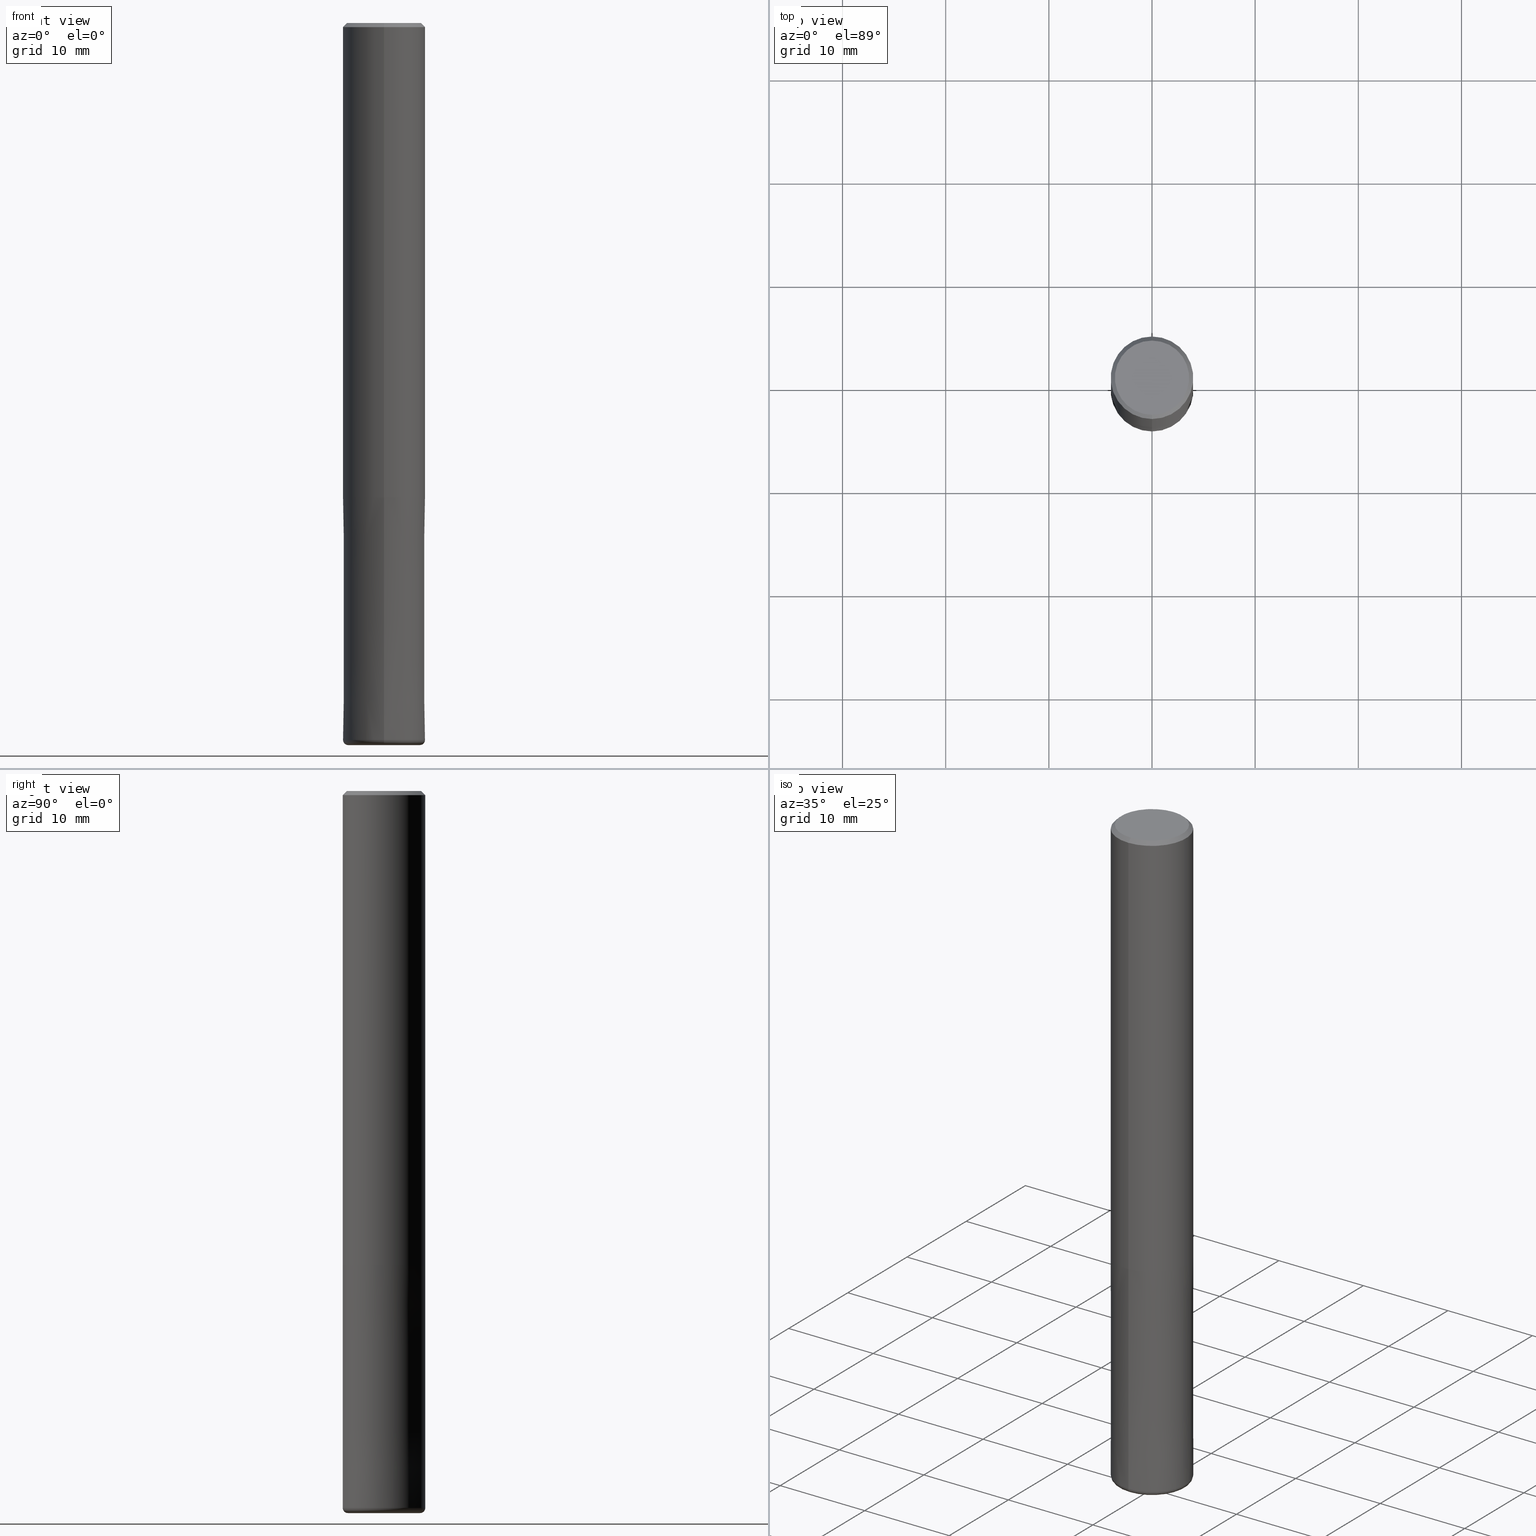
[diagram: canonical four-view strip — front | top / right | iso, engineering-drawing reading convention]
A machine part, canonical four-view strip (front | top / right | iso — engineering-drawing reading convention). The complete STEP part file that produces these views, byte-faithful:
ISO-10303-21;
HEADER;
FILE_DESCRIPTION(('no description'),'unknown implementation level');
FILE_NAME('CXRS5080-05-2400-Huellk.stp','  ',('CIMSOURCE GmbH'),('CADClick - KiM GmbH - www.kimweb.de'),'unknown preprocess','ACIS','unknown authorization');
FILE_SCHEMA(('automotive_design'));
ENDSEC;
DATA;
#1=MECHANICAL_DESIGN_GEOMETRIC_PRESENTATION_REPRESENTATION(' ',(#14,#15,#16,#17,#18,#19,#20,#21,#22,#23,#24,#25,#26,#27,#28,#29,#30,#31,#32,#33,#34,#35,#36,#37,#38,#39,#40,#41,#42,#43,#44,#45,#46,#47,#48,#49,#50,#51,#52,#53,#54,#55,#56,#57,#58,#59,#60,#61,#62,#63,#64,#65,#66,#67,#68,#69,#70,#71,#72,#73,#74,#75,#76,#77,#78,#79,#80,#81,#82,#83,#84),#10);
#2=PRODUCT_DEFINITION_CONTEXT('',#85,'design');
#3=APPLICATION_PROTOCOL_DEFINITION('INTERNATIONAL STANDARD','automotive_design',1994,#85);
#4=PRODUCT_CATEGORY_RELATIONSHIP('NONE','NONE',#86,#87);
#5=SHAPE_DEFINITION_REPRESENTATION(#88,#89);
#6=PRODUCT_DEFINITION_CONTEXT('',#90,'design');
#7=APPLICATION_PROTOCOL_DEFINITION('INTERNATIONAL STANDARD','automotive_design',1994,#90);
#8=PRODUCT_CATEGORY_RELATIONSHIP('NONE','NONE',#91,#92);
#9=SHAPE_DEFINITION_REPRESENTATION(#93,#94);
#10= (GEOMETRIC_REPRESENTATION_CONTEXT(3)GLOBAL_UNCERTAINTY_ASSIGNED_CONTEXT((#97))GLOBAL_UNIT_ASSIGNED_CONTEXT((#99,#100,#101))REPRESENTATION_CONTEXT('NONE','WORKSPACE'));
#14=STYLED_ITEM('',(#103),#104);
#15=STYLED_ITEM('',(#105),#106);
#16=STYLED_ITEM('',(#107),#108);
#17=STYLED_ITEM('',(#109),#110);
#18=STYLED_ITEM('',(#111),#112);
#19=STYLED_ITEM('',(#113),#114);
#20=STYLED_ITEM('',(#115),#116);
#21=STYLED_ITEM('',(#117),#118);
#22=STYLED_ITEM('',(#119),#120);
#23=STYLED_ITEM('',(#121),#122);
#24=STYLED_ITEM('',(#123),#124);
#25=STYLED_ITEM('',(#125),#126);
#26=STYLED_ITEM('',(#127),#128);
#27=STYLED_ITEM('',(#129),#130);
#28=STYLED_ITEM('',(#131),#132);
#29=STYLED_ITEM('',(#133),#134);
#30=STYLED_ITEM('',(#135),#136);
#31=STYLED_ITEM('',(#137),#138);
#32=STYLED_ITEM('',(#139),#140);
#33=STYLED_ITEM('',(#141),#142);
#34=STYLED_ITEM('',(#143),#144);
#35=STYLED_ITEM('',(#145),#146);
#36=STYLED_ITEM('',(#147),#148);
#37=STYLED_ITEM('',(#149),#150);
#38=STYLED_ITEM('',(#151),#152);
#39=STYLED_ITEM('',(#153),#154);
#40=STYLED_ITEM('',(#155),#156);
#41=STYLED_ITEM('',(#157),#158);
#42=STYLED_ITEM('',(#159),#160);
#43=STYLED_ITEM('',(#161),#162);
#44=STYLED_ITEM('',(#163),#164);
#45=STYLED_ITEM('',(#165),#166);
#46=STYLED_ITEM('',(#167),#168);
#47=STYLED_ITEM('',(#169),#170);
#48=STYLED_ITEM('',(#171),#172);
#49=STYLED_ITEM('',(#173),#174);
#50=STYLED_ITEM('',(#175),#176);
#51=STYLED_ITEM('',(#177),#178);
#52=STYLED_ITEM('',(#179),#180);
#53=STYLED_ITEM('',(#181),#182);
#54=STYLED_ITEM('',(#183),#184);
#55=STYLED_ITEM('',(#185),#186);
#56=STYLED_ITEM('',(#187),#188);
#57=STYLED_ITEM('',(#189),#190);
#58=STYLED_ITEM('',(#191),#192);
#59=STYLED_ITEM('',(#193),#194);
#60=STYLED_ITEM('',(#195),#196);
#61=STYLED_ITEM('',(#197),#198);
#62=STYLED_ITEM('',(#199),#200);
#63=STYLED_ITEM('',(#201),#202);
#64=STYLED_ITEM('',(#203),#204);
#65=STYLED_ITEM('',(#205),#206);
#66=STYLED_ITEM('',(#207),#208);
#67=STYLED_ITEM('',(#209),#210);
#68=STYLED_ITEM('',(#211),#212);
#69=STYLED_ITEM('',(#213),#214);
#70=STYLED_ITEM('',(#215),#216);
#71=STYLED_ITEM('',(#217),#218);
#72=STYLED_ITEM('',(#219),#220);
#73=STYLED_ITEM('',(#221),#222);
#74=STYLED_ITEM('',(#223),#224);
#75=STYLED_ITEM('',(#225),#226);
#76=STYLED_ITEM('',(#227),#228);
#77=STYLED_ITEM('',(#229),#230);
#78=STYLED_ITEM('',(#231),#232);
#79=STYLED_ITEM('',(#233),#234);
#80=STYLED_ITEM('',(#235),#236);
#81=STYLED_ITEM('',(#237),#238);
#82=STYLED_ITEM('',(#239),#240);
#83=STYLED_ITEM('',(#241),#242);
#84=STYLED_ITEM('',(#243),#244);
#85=APPLICATION_CONTEXT(' ');
#86=PRODUCT_CATEGORY('part','NONE');
#87=PRODUCT_RELATED_PRODUCT_CATEGORY('detail',' ',(#245));
#88=PRODUCT_DEFINITION_SHAPE('NONE','NONE',#246);
#89=ADVANCED_BREP_SHAPE_REPRESENTATION('1',(#142,#247),#10);
#90=APPLICATION_CONTEXT(' ');
#91=PRODUCT_CATEGORY('part','NONE');
#92=PRODUCT_RELATED_PRODUCT_CATEGORY('detail',' ',(#248));
#93=PRODUCT_DEFINITION_SHAPE('NONE','NONE',#249);
#94=ADVANCED_BREP_SHAPE_REPRESENTATION('2',(#222,#250),#10);
#97=UNCERTAINTY_MEASURE_WITH_UNIT(LENGTH_MEASURE(1.0E-006),#99,'','');
#99= (CONVERSION_BASED_UNIT('MILLIMETRE',#253)LENGTH_UNIT()NAMED_UNIT(#256));
#100= (NAMED_UNIT(#258)PLANE_ANGLE_UNIT()SI_UNIT($,.RADIAN.));
#101= (NAMED_UNIT(#258)SOLID_ANGLE_UNIT()SI_UNIT($,.STERADIAN.));
#103=PRESENTATION_STYLE_ASSIGNMENT((#264));
#104=EDGE_CURVE('',#186,#210,#265,.T.);
#105=PRESENTATION_STYLE_ASSIGNMENT((#266));
#106=VERTEX_POINT('',#267);
#107=PRESENTATION_STYLE_ASSIGNMENT((#268));
#108=VERTEX_POINT('',#269);
#109=PRESENTATION_STYLE_ASSIGNMENT((#270));
#110=ADVANCED_FACE('',(#271),#272,.T.);
#111=PRESENTATION_STYLE_ASSIGNMENT((#273));
#112=VERTEX_POINT('',#274);
#113=PRESENTATION_STYLE_ASSIGNMENT((#275));
#114=VERTEX_POINT('',#276);
#115=PRESENTATION_STYLE_ASSIGNMENT((#277));
#116=ADVANCED_FACE('',(#278),#279,.F.);
#117=PRESENTATION_STYLE_ASSIGNMENT((#280));
#118=EDGE_CURVE('',#200,#216,#281,.T.);
#119=PRESENTATION_STYLE_ASSIGNMENT((#282));
#120=VERTEX_POINT('',#283);
#121=PRESENTATION_STYLE_ASSIGNMENT((#284));
#122=EDGE_CURVE('',#150,#120,#285,.T.);
#123=PRESENTATION_STYLE_ASSIGNMENT((#286));
#124=EDGE_CURVE('',#236,#144,#287,.T.);
#125=PRESENTATION_STYLE_ASSIGNMENT((#288));
#126=ADVANCED_FACE('',(#289,#290),#291,.T.);
#127=PRESENTATION_STYLE_ASSIGNMENT((#292));
#128=ADVANCED_FACE('',(#293),#294,.T.);
#129=PRESENTATION_STYLE_ASSIGNMENT((#295));
#130=EDGE_CURVE('',#144,#114,#296,.T.);
#131=PRESENTATION_STYLE_ASSIGNMENT((#297));
#132=EDGE_CURVE('',#180,#206,#298,.T.);
#133=PRESENTATION_STYLE_ASSIGNMENT((#299));
#134=EDGE_CURVE('',#170,#150,#300,.T.);
#135=PRESENTATION_STYLE_ASSIGNMENT((#301));
#136=EDGE_CURVE('',#106,#170,#302,.T.);
#137=PRESENTATION_STYLE_ASSIGNMENT((#303));
#138=EDGE_CURVE('',#112,#216,#304,.T.);
#139=PRESENTATION_STYLE_ASSIGNMENT((#305));
#140=ADVANCED_FACE('',(#306),#307,.T.);
#141=PRESENTATION_STYLE_ASSIGNMENT((#308));
#142=MANIFOLD_SOLID_BREP('1',#309);
#143=PRESENTATION_STYLE_ASSIGNMENT((#310));
#144=VERTEX_POINT('',#311);
#145=PRESENTATION_STYLE_ASSIGNMENT((#312));
#146=EDGE_CURVE('',#216,#112,#313,.T.);
#147=PRESENTATION_STYLE_ASSIGNMENT((#314));
#148=ADVANCED_FACE('',(#315),#316,.F.);
#149=PRESENTATION_STYLE_ASSIGNMENT((#317));
#150=VERTEX_POINT('',#318);
#151=PRESENTATION_STYLE_ASSIGNMENT((#319));
#152=EDGE_CURVE('',#120,#150,#320,.T.);
#153=PRESENTATION_STYLE_ASSIGNMENT((#321));
#154=ADVANCED_FACE('',(#322),#323,.T.);
#155=PRESENTATION_STYLE_ASSIGNMENT((#324));
#156=EDGE_CURVE('',#202,#206,#325,.T.);
#157=PRESENTATION_STYLE_ASSIGNMENT((#326));
#158=EDGE_CURVE('',#144,#236,#327,.T.);
#159=PRESENTATION_STYLE_ASSIGNMENT((#328));
#160=ADVANCED_FACE('',(#329),#330,.T.);
#161=PRESENTATION_STYLE_ASSIGNMENT((#331));
#162=VERTEX_POINT('',#332);
#163=PRESENTATION_STYLE_ASSIGNMENT((#333));
#164=VERTEX_POINT('',#334);
#165=PRESENTATION_STYLE_ASSIGNMENT((#335));
#166=ADVANCED_FACE('',(#336,#337),#338,.T.);
#167=PRESENTATION_STYLE_ASSIGNMENT((#339));
#168=EDGE_CURVE('',#112,#172,#340,.T.);
#169=PRESENTATION_STYLE_ASSIGNMENT((#341));
#170=VERTEX_POINT('',#342);
#171=PRESENTATION_STYLE_ASSIGNMENT((#343));
#172=VERTEX_POINT('',#344);
#173=PRESENTATION_STYLE_ASSIGNMENT((#345));
#174=EDGE_CURVE('',#178,#170,#346,.T.);
#175=PRESENTATION_STYLE_ASSIGNMENT((#347));
#176=EDGE_CURVE('',#164,#180,#348,.T.);
#177=PRESENTATION_STYLE_ASSIGNMENT((#349));
#178=VERTEX_POINT('',#350);
#179=PRESENTATION_STYLE_ASSIGNMENT((#351));
#180=VERTEX_POINT('',#352);
#181=PRESENTATION_STYLE_ASSIGNMENT((#353));
#182=ADVANCED_FACE('',(#354),#355,.T.);
#183=PRESENTATION_STYLE_ASSIGNMENT((#356));
#184=EDGE_CURVE('',#202,#164,#357,.T.);
#185=PRESENTATION_STYLE_ASSIGNMENT((#358));
#186=VERTEX_POINT('',#359);
#187=PRESENTATION_STYLE_ASSIGNMENT((#360));
#188=EDGE_CURVE('',#206,#202,#361,.T.);
#189=PRESENTATION_STYLE_ASSIGNMENT((#362));
#190=EDGE_CURVE('',#114,#162,#363,.T.);
#191=PRESENTATION_STYLE_ASSIGNMENT((#364));
#192=EDGE_CURVE('',#172,#200,#365,.T.);
#193=PRESENTATION_STYLE_ASSIGNMENT((#366));
#194=EDGE_CURVE('',#108,#178,#367,.T.);
#195=PRESENTATION_STYLE_ASSIGNMENT((#368));
#196=EDGE_CURVE('',#120,#106,#369,.T.);
#197=PRESENTATION_STYLE_ASSIGNMENT((#370));
#198=ADVANCED_FACE('',(#371),#372,.T.);
#199=PRESENTATION_STYLE_ASSIGNMENT((#373));
#200=VERTEX_POINT('',#374);
#201=PRESENTATION_STYLE_ASSIGNMENT((#375));
#202=VERTEX_POINT('',#376);
#203=PRESENTATION_STYLE_ASSIGNMENT((#377));
#204=ADVANCED_FACE('',(#378),#379,.T.);
#205=PRESENTATION_STYLE_ASSIGNMENT((#380));
#206=VERTEX_POINT('',#381);
#207=PRESENTATION_STYLE_ASSIGNMENT((#382));
#208=EDGE_CURVE('',#178,#108,#383,.T.);
#209=PRESENTATION_STYLE_ASSIGNMENT((#384));
#210=VERTEX_POINT('',#385);
#211=PRESENTATION_STYLE_ASSIGNMENT((#386));
#212=ADVANCED_FACE('',(#387),#388,.T.);
#213=PRESENTATION_STYLE_ASSIGNMENT((#389));
#214=EDGE_CURVE('',#200,#172,#390,.T.);
#215=PRESENTATION_STYLE_ASSIGNMENT((#391));
#216=VERTEX_POINT('',#392);
#217=PRESENTATION_STYLE_ASSIGNMENT((#393));
#218=EDGE_CURVE('',#210,#186,#394,.T.);
#219=PRESENTATION_STYLE_ASSIGNMENT((#395));
#220=EDGE_CURVE('',#180,#164,#396,.T.);
#221=PRESENTATION_STYLE_ASSIGNMENT((#397));
#222=MANIFOLD_SOLID_BREP('2',#398);
#223=PRESENTATION_STYLE_ASSIGNMENT((#399));
#224=EDGE_CURVE('',#106,#108,#400,.T.);
#225=PRESENTATION_STYLE_ASSIGNMENT((#401));
#226=EDGE_CURVE('',#162,#236,#402,.T.);
#227=PRESENTATION_STYLE_ASSIGNMENT((#403));
#228=EDGE_CURVE('',#170,#106,#404,.T.);
#229=PRESENTATION_STYLE_ASSIGNMENT((#405));
#230=ADVANCED_FACE('',(#406,#407),#408,.T.);
#231=PRESENTATION_STYLE_ASSIGNMENT((#409));
#232=ADVANCED_FACE('',(#410),#411,.T.);
#233=PRESENTATION_STYLE_ASSIGNMENT((#412));
#234=ADVANCED_FACE('',(#413),#414,.T.);
#235=PRESENTATION_STYLE_ASSIGNMENT((#415));
#236=VERTEX_POINT('',#416);
#237=PRESENTATION_STYLE_ASSIGNMENT((#417));
#238=ADVANCED_FACE('',(#418),#419,.T.);
#239=PRESENTATION_STYLE_ASSIGNMENT((#420));
#240=EDGE_CURVE('',#162,#114,#421,.T.);
#241=PRESENTATION_STYLE_ASSIGNMENT((#422));
#242=EDGE_CURVE('',#202,#210,#423,.T.);
#243=PRESENTATION_STYLE_ASSIGNMENT((#424));
#244=EDGE_CURVE('',#186,#206,#425,.T.);
#245=PRODUCT('1','1','PART-1-DESC',(#426));
#246=PRODUCT_DEFINITION('NONE','NONE',#427,#2);
#247=AXIS2_PLACEMENT_3D('',#428,#429,#430);
#248=PRODUCT('2','2','PART-2-DESC',(#431));
#249=PRODUCT_DEFINITION('NONE','NONE',#432,#6);
#250=AXIS2_PLACEMENT_3D('',#433,#434,#435);
#253=LENGTH_MEASURE_WITH_UNIT(LENGTH_MEASURE(1.0),#436);
#256=DIMENSIONAL_EXPONENTS(1.0,0.0,0.0,0.0,0.0,0.0,0.0);
#258=DIMENSIONAL_EXPONENTS(0.0,0.0,0.0,0.0,0.0,0.0,0.0);
#264=CURVE_STYLE('',#437,POSITIVE_LENGTH_MEASURE(1.0E-006),#438);
#265=CIRCLE('',#439,3.9999);
#266=POINT_STYLE(' ',#440,POSITIVE_LENGTH_MEASURE(1.0E-006),#441);
#267=CARTESIAN_POINT('',(4.89842541528951E-016,-4.0,-0.399999999999999));
#268=POINT_STYLE(' ',#442,POSITIVE_LENGTH_MEASURE(1.0E-006),#443);
#269=CARTESIAN_POINT('',(4.40858287376056E-016,-3.6,0.0));
#270=SURFACE_STYLE_USAGE(.BOTH.,#444);
#271=FACE_OUTER_BOUND('',#445,.T.);
#272=TOROIDAL_SURFACE('',#446,3.49999999999999,0.500000000000007);
#273=POINT_STYLE(' ',#447,POSITIVE_LENGTH_MEASURE(1.0E-006),#448);
#274=CARTESIAN_POINT('',(2.20429143688028E-016,-1.8,-69.9));
#275=POINT_STYLE(' ',#449,POSITIVE_LENGTH_MEASURE(1.0E-006),#450);
#276=CARTESIAN_POINT('',(0.0,1.8,-70.0));
#277=SURFACE_STYLE_USAGE(.BOTH.,#451);
#278=FACE_OUTER_BOUND('',#452,.T.);
#279=CYLINDRICAL_SURFACE('',#453,1.8);
#280=CURVE_STYLE('',#454,POSITIVE_LENGTH_MEASURE(1.0E-006),#455);
#281=LINE('',#456,#457);
#282=POINT_STYLE(' ',#458,POSITIVE_LENGTH_MEASURE(1.0E-006),#459);
#283=CARTESIAN_POINT('',(4.89842541528951E-016,-4.0,-46.0));
#284=CURVE_STYLE('',#460,POSITIVE_LENGTH_MEASURE(1.0E-006),#461);
#285=CIRCLE('',#462,4.0);
#286=CURVE_STYLE('',#463,POSITIVE_LENGTH_MEASURE(1.0E-006),#464);
#287=CIRCLE('',#465,1.8);
#288=SURFACE_STYLE_USAGE(.BOTH.,#466);
#289=FACE_BOUND('',#467,.T.);
#290=FACE_OUTER_BOUND('',#468,.T.);
#291=PLANE('',#469);
#292=SURFACE_STYLE_USAGE(.BOTH.,#470);
#293=FACE_OUTER_BOUND('',#471,.T.);
#294=CYLINDRICAL_SURFACE('',#472,1.8);
#295=CURVE_STYLE('',#473,POSITIVE_LENGTH_MEASURE(1.0E-006),#474);
#296=LINE('',#475,#476);
#297=CURVE_STYLE('',#477,POSITIVE_LENGTH_MEASURE(1.0E-006),#478);
#298=CIRCLE('',#479,0.500000000000007);
#299=CURVE_STYLE('',#480,POSITIVE_LENGTH_MEASURE(1.0E-006),#481);
#300=LINE('',#482,#483);
#301=CURVE_STYLE('',#484,POSITIVE_LENGTH_MEASURE(1.0E-006),#485);
#302=CIRCLE('',#486,4.0);
#303=CURVE_STYLE('',#487,POSITIVE_LENGTH_MEASURE(1.0E-006),#488);
#304=CIRCLE('',#489,1.8);
#305=SURFACE_STYLE_USAGE(.BOTH.,#490);
#306=FACE_OUTER_BOUND('',#491,.T.);
#307=PLANE('',#492);
#308=SURFACE_STYLE_USAGE(.BOTH.,#493);
#309=CLOSED_SHELL('',(#128,#238,#232,#166,#234,#212,#198,#182,#140));
#310=POINT_STYLE(' ',#494,POSITIVE_LENGTH_MEASURE(1.0E-006),#495);
#311=CARTESIAN_POINT('',(0.0,1.8,-46.0));
#312=CURVE_STYLE('',#496,POSITIVE_LENGTH_MEASURE(1.0E-006),#497);
#313=CIRCLE('',#498,1.8);
#314=SURFACE_STYLE_USAGE(.BOTH.,#499);
#315=FACE_OUTER_BOUND('',#500,.T.);
#316=CYLINDRICAL_SURFACE('',#501,1.8);
#317=POINT_STYLE(' ',#502,POSITIVE_LENGTH_MEASURE(1.0E-006),#503);
#318=CARTESIAN_POINT('',(0.0,4.0,-46.0));
#319=CURVE_STYLE('',#504,POSITIVE_LENGTH_MEASURE(1.0E-006),#505);
#320=CIRCLE('',#506,4.0);
#321=SURFACE_STYLE_USAGE(.BOTH.,#507);
#322=FACE_OUTER_BOUND('',#508,.T.);
#323=CONICAL_SURFACE('',#509,3.99995,4.25531914891947E-006);
#324=CURVE_STYLE('',#510,POSITIVE_LENGTH_MEASURE(1.0E-006),#511);
#325=CIRCLE('',#512,4.0);
#326=CURVE_STYLE('',#513,POSITIVE_LENGTH_MEASURE(1.0E-006),#514);
#327=CIRCLE('',#515,1.8);
#328=SURFACE_STYLE_USAGE(.BOTH.,#516);
#329=FACE_OUTER_BOUND('',#517,.T.);
#330=TOROIDAL_SURFACE('',#518,3.49999999999999,0.500000000000007);
#331=POINT_STYLE(' ',#519,POSITIVE_LENGTH_MEASURE(1.0E-006),#520);
#332=CARTESIAN_POINT('',(2.20429143688028E-016,-1.8,-70.0));
#333=POINT_STYLE(' ',#521,POSITIVE_LENGTH_MEASURE(1.0E-006),#522);
#334=CARTESIAN_POINT('',(4.28612223837832E-016,-3.5,-70.0));
#335=SURFACE_STYLE_USAGE(.BOTH.,#523);
#336=FACE_OUTER_BOUND('',#524,.T.);
#337=FACE_BOUND('',#525,.T.);
#338=PLANE('',#526);
#339=CURVE_STYLE('',#527,POSITIVE_LENGTH_MEASURE(1.0E-006),#528);
#340=LINE('',#529,#530);
#341=POINT_STYLE(' ',#531,POSITIVE_LENGTH_MEASURE(1.0E-006),#532);
#342=CARTESIAN_POINT('',(0.0,4.0,-0.399999999999999));
#343=POINT_STYLE(' ',#533,POSITIVE_LENGTH_MEASURE(1.0E-006),#534);
#344=CARTESIAN_POINT('',(2.20429143688028E-016,-1.8,-46.0));
#345=CURVE_STYLE('',#535,POSITIVE_LENGTH_MEASURE(1.0E-006),#536);
#346=LINE('',#537,#538);
#347=CURVE_STYLE('',#539,POSITIVE_LENGTH_MEASURE(1.0E-006),#540);
#348=CIRCLE('',#541,3.5);
#349=POINT_STYLE(' ',#542,POSITIVE_LENGTH_MEASURE(1.0E-006),#543);
#350=CARTESIAN_POINT('',(0.0,3.6,0.0));
#351=POINT_STYLE(' ',#544,POSITIVE_LENGTH_MEASURE(1.0E-006),#545);
#352=CARTESIAN_POINT('',(0.0,3.5,-70.0));
#353=SURFACE_STYLE_USAGE(.BOTH.,#546);
#354=FACE_OUTER_BOUND('',#547,.T.);
#355=CYLINDRICAL_SURFACE('',#548,1.8);
#356=CURVE_STYLE('',#549,POSITIVE_LENGTH_MEASURE(1.0E-006),#550);
#357=CIRCLE('',#551,0.500000000000007);
#358=POINT_STYLE(' ',#552,POSITIVE_LENGTH_MEASURE(1.0E-006),#553);
#359=CARTESIAN_POINT('',(0.0,3.9999,-46.0));
#360=CURVE_STYLE('',#554,POSITIVE_LENGTH_MEASURE(1.0E-006),#555);
#361=CIRCLE('',#556,4.0);
#362=CURVE_STYLE('',#557,POSITIVE_LENGTH_MEASURE(1.0E-006),#558);
#363=CIRCLE('',#559,1.8);
#364=CURVE_STYLE('',#560,POSITIVE_LENGTH_MEASURE(1.0E-006),#561);
#365=CIRCLE('',#562,1.8);
#366=CURVE_STYLE('',#563,POSITIVE_LENGTH_MEASURE(1.0E-006),#564);
#367=CIRCLE('',#565,3.6);
#368=CURVE_STYLE('',#566,POSITIVE_LENGTH_MEASURE(1.0E-006),#567);
#369=LINE('',#568,#569);
#370=SURFACE_STYLE_USAGE(.BOTH.,#570);
#371=FACE_OUTER_BOUND('',#571,.T.);
#372=CYLINDRICAL_SURFACE('',#572,4.0);
#373=POINT_STYLE(' ',#573,POSITIVE_LENGTH_MEASURE(1.0E-006),#574);
#374=CARTESIAN_POINT('',(0.0,1.8,-46.0));
#375=POINT_STYLE(' ',#575,POSITIVE_LENGTH_MEASURE(1.0E-006),#576);
#376=CARTESIAN_POINT('',(4.89842541528951E-016,-4.0,-69.5));
#377=SURFACE_STYLE_USAGE(.BOTH.,#577);
#378=FACE_OUTER_BOUND('',#578,.T.);
#379=CONICAL_SURFACE('',#579,3.99995,4.25531914891947E-006);
#380=POINT_STYLE(' ',#580,POSITIVE_LENGTH_MEASURE(1.0E-006),#581);
#381=CARTESIAN_POINT('',(0.0,4.0,-69.5));
#382=CURVE_STYLE('',#582,POSITIVE_LENGTH_MEASURE(1.0E-006),#583);
#383=CIRCLE('',#584,3.6);
#384=POINT_STYLE(' ',#585,POSITIVE_LENGTH_MEASURE(1.0E-006),#586);
#385=CARTESIAN_POINT('',(4.89830295465413E-016,-3.9999,-46.0));
#386=SURFACE_STYLE_USAGE(.BOTH.,#587);
#387=FACE_OUTER_BOUND('',#588,.T.);
#388=CONICAL_SURFACE('',#589,3.8,0.78539816339745);
#389=CURVE_STYLE('',#590,POSITIVE_LENGTH_MEASURE(1.0E-006),#591);
#390=CIRCLE('',#592,1.8);
#391=POINT_STYLE(' ',#593,POSITIVE_LENGTH_MEASURE(1.0E-006),#594);
#392=CARTESIAN_POINT('',(0.0,1.8,-69.9));
#393=CURVE_STYLE('',#595,POSITIVE_LENGTH_MEASURE(1.0E-006),#596);
#394=CIRCLE('',#597,3.9999);
#395=CURVE_STYLE('',#598,POSITIVE_LENGTH_MEASURE(1.0E-006),#599);
#396=CIRCLE('',#600,3.5);
#397=SURFACE_STYLE_USAGE(.BOTH.,#601);
#398=CLOSED_SHELL('',(#148,#110,#154,#230,#204,#160,#126,#116));
#399=CURVE_STYLE('',#602,POSITIVE_LENGTH_MEASURE(1.0E-006),#603);
#400=LINE('',#604,#605);
#401=CURVE_STYLE('',#606,POSITIVE_LENGTH_MEASURE(1.0E-006),#607);
#402=LINE('',#608,#609);
#403=CURVE_STYLE('',#610,POSITIVE_LENGTH_MEASURE(1.0E-006),#611);
#404=CIRCLE('',#612,4.0);
#405=SURFACE_STYLE_USAGE(.BOTH.,#613);
#406=FACE_OUTER_BOUND('',#614,.T.);
#407=FACE_BOUND('',#615,.T.);
#408=PLANE('',#616);
#409=SURFACE_STYLE_USAGE(.BOTH.,#617);
#410=FACE_OUTER_BOUND('',#618,.T.);
#411=CONICAL_SURFACE('',#619,3.8,0.78539816339745);
#412=SURFACE_STYLE_USAGE(.BOTH.,#620);
#413=FACE_OUTER_BOUND('',#621,.T.);
#414=PLANE('',#622);
#415=POINT_STYLE(' ',#623,POSITIVE_LENGTH_MEASURE(1.0E-006),#624);
#416=CARTESIAN_POINT('',(2.20429143688028E-016,-1.8,-46.0));
#417=SURFACE_STYLE_USAGE(.BOTH.,#625);
#418=FACE_OUTER_BOUND('',#626,.T.);
#419=CYLINDRICAL_SURFACE('',#627,4.0);
#420=CURVE_STYLE('',#628,POSITIVE_LENGTH_MEASURE(1.0E-006),#629);
#421=CIRCLE('',#630,1.8);
#422=CURVE_STYLE('',#631,POSITIVE_LENGTH_MEASURE(1.0E-006),#632);
#423=LINE('',#633,#634);
#424=CURVE_STYLE('',#635,POSITIVE_LENGTH_MEASURE(1.0E-006),#636);
#425=LINE('',#637,#638);
#426=PRODUCT_CONTEXT('',#85,'mechanical');
#427=PRODUCT_DEFINITION_FORMATION_WITH_SPECIFIED_SOURCE(' ','NONE',#245,.NOT_KNOWN.);
#428=CARTESIAN_POINT('',(0.0,0.0,0.0));
#429=DIRECTION('',(0.0,0.0,1.0));
#430=DIRECTION('',(1.0,0.0,0.0));
#431=PRODUCT_CONTEXT('',#90,'mechanical');
#432=PRODUCT_DEFINITION_FORMATION_WITH_SPECIFIED_SOURCE(' ','NONE',#248,.NOT_KNOWN.);
#433=CARTESIAN_POINT('',(0.0,0.0,0.0));
#434=DIRECTION('',(0.0,0.0,1.0));
#435=DIRECTION('',(1.0,0.0,0.0));
#436= (NAMED_UNIT(#256)LENGTH_UNIT()SI_UNIT(.MILLI.,.METRE.));
#437=DRAUGHTING_PRE_DEFINED_CURVE_FONT('continuous');
#438=COLOUR_RGB('',0.800000011920929,0.800000011920929,0.800000011920929);
#439=AXIS2_PLACEMENT_3D('',#640,#641,#642);
#440=PRE_DEFINED_MARKER('');
#441=COLOUR_RGB('',0.498039215803146,0.498039215803146,0.498039215803146);
#442=PRE_DEFINED_MARKER('');
#443=COLOUR_RGB('',0.498039215803146,0.498039215803146,0.498039215803146);
#444=SURFACE_SIDE_STYLE('',(#643));
#445=EDGE_LOOP('',(#644,#645,#646,#647));
#446=AXIS2_PLACEMENT_3D('',#648,#649,#650);
#447=PRE_DEFINED_MARKER('');
#448=COLOUR_RGB('',0.498039215803146,0.498039215803146,0.498039215803146);
#449=PRE_DEFINED_MARKER('');
#450=COLOUR_RGB('',0.800000011920929,0.800000011920929,0.800000011920929);
#451=SURFACE_SIDE_STYLE('',(#651));
#452=EDGE_LOOP('',(#652,#653,#654,#655));
#453=AXIS2_PLACEMENT_3D('',#656,#657,#658);
#454=DRAUGHTING_PRE_DEFINED_CURVE_FONT('continuous');
#455=COLOUR_RGB('',0.498039215803146,0.498039215803146,0.498039215803146);
#456=CARTESIAN_POINT('',(-2.20429143688028E-016,1.8,-57.95));
#457=VECTOR('',#659,1.0);
#458=PRE_DEFINED_MARKER('');
#459=COLOUR_RGB('',0.498039215803146,0.498039215803146,0.498039215803146);
#460=DRAUGHTING_PRE_DEFINED_CURVE_FONT('continuous');
#461=COLOUR_RGB('',0.498039215803146,0.498039215803146,0.498039215803146);
#462=AXIS2_PLACEMENT_3D('',#660,#661,#662);
#463=DRAUGHTING_PRE_DEFINED_CURVE_FONT('continuous');
#464=COLOUR_RGB('',0.800000011920929,0.800000011920929,0.800000011920929);
#465=AXIS2_PLACEMENT_3D('',#663,#664,#665);
#466=SURFACE_SIDE_STYLE('',(#666));
#467=EDGE_LOOP('',(#667,#668));
#468=EDGE_LOOP('',(#669,#670));
#469=AXIS2_PLACEMENT_3D('',#671,#672,#673);
#470=SURFACE_SIDE_STYLE('',(#674));
#471=EDGE_LOOP('',(#675,#676,#677,#678));
#472=AXIS2_PLACEMENT_3D('',#679,#680,#681);
#473=DRAUGHTING_PRE_DEFINED_CURVE_FONT('continuous');
#474=COLOUR_RGB('',0.800000011920929,0.800000011920929,0.800000011920929);
#475=CARTESIAN_POINT('',(-2.20429143688028E-016,1.8,-58.0));
#476=VECTOR('',#682,1.0);
#477=DRAUGHTING_PRE_DEFINED_CURVE_FONT('continuous');
#478=COLOUR_RGB('',0.800000011920929,0.800000011920929,0.800000011920929);
#479=AXIS2_PLACEMENT_3D('',#683,#684,#685);
#480=DRAUGHTING_PRE_DEFINED_CURVE_FONT('continuous');
#481=COLOUR_RGB('',0.498039215803146,0.498039215803146,0.498039215803146);
#482=CARTESIAN_POINT('',(-4.89842541528951E-016,4.0,-23.2));
#483=VECTOR('',#686,1.0);
#484=DRAUGHTING_PRE_DEFINED_CURVE_FONT('continuous');
#485=COLOUR_RGB('',0.498039215803146,0.498039215803146,0.498039215803146);
#486=AXIS2_PLACEMENT_3D('',#687,#688,#689);
#487=DRAUGHTING_PRE_DEFINED_CURVE_FONT('continuous');
#488=COLOUR_RGB('',0.498039215803146,0.498039215803146,0.498039215803146);
#489=AXIS2_PLACEMENT_3D('',#690,#691,#692);
#490=SURFACE_SIDE_STYLE('',(#693));
#491=EDGE_LOOP('',(#694,#695));
#492=AXIS2_PLACEMENT_3D('',#696,#697,#698);
#493=SURFACE_SIDE_STYLE('',(#699));
#494=PRE_DEFINED_MARKER('');
#495=COLOUR_RGB('',0.800000011920929,0.800000011920929,0.800000011920929);
#496=DRAUGHTING_PRE_DEFINED_CURVE_FONT('continuous');
#497=COLOUR_RGB('',0.498039215803146,0.498039215803146,0.498039215803146);
#498=AXIS2_PLACEMENT_3D('',#700,#701,#702);
#499=SURFACE_SIDE_STYLE('',(#703));
#500=EDGE_LOOP('',(#704,#705,#706,#707));
#501=AXIS2_PLACEMENT_3D('',#708,#709,#710);
#502=PRE_DEFINED_MARKER('');
#503=COLOUR_RGB('',0.498039215803146,0.498039215803146,0.498039215803146);
#504=DRAUGHTING_PRE_DEFINED_CURVE_FONT('continuous');
#505=COLOUR_RGB('',0.498039215803146,0.498039215803146,0.498039215803146);
#506=AXIS2_PLACEMENT_3D('',#711,#712,#713);
#507=SURFACE_SIDE_STYLE('',(#714));
#508=EDGE_LOOP('',(#715,#716,#717,#718));
#509=AXIS2_PLACEMENT_3D('',#719,#720,#721);
#510=DRAUGHTING_PRE_DEFINED_CURVE_FONT('continuous');
#511=COLOUR_RGB('',0.800000011920929,0.800000011920929,0.800000011920929);
#512=AXIS2_PLACEMENT_3D('',#722,#723,#724);
#513=DRAUGHTING_PRE_DEFINED_CURVE_FONT('continuous');
#514=COLOUR_RGB('',0.800000011920929,0.800000011920929,0.800000011920929);
#515=AXIS2_PLACEMENT_3D('',#725,#726,#727);
#516=SURFACE_SIDE_STYLE('',(#728));
#517=EDGE_LOOP('',(#729,#730,#731,#732));
#518=AXIS2_PLACEMENT_3D('',#733,#734,#735);
#519=PRE_DEFINED_MARKER('');
#520=COLOUR_RGB('',0.800000011920929,0.800000011920929,0.800000011920929);
#521=PRE_DEFINED_MARKER('');
#522=COLOUR_RGB('',0.800000011920929,0.800000011920929,0.800000011920929);
#523=SURFACE_SIDE_STYLE('',(#736));
#524=EDGE_LOOP('',(#737,#738));
#525=EDGE_LOOP('',(#739,#740));
#526=AXIS2_PLACEMENT_3D('',#741,#742,#743);
#527=DRAUGHTING_PRE_DEFINED_CURVE_FONT('continuous');
#528=COLOUR_RGB('',0.498039215803146,0.498039215803146,0.498039215803146);
#529=CARTESIAN_POINT('',(2.20429143688028E-016,-1.8,-57.95));
#530=VECTOR('',#744,1.0);
#531=PRE_DEFINED_MARKER('');
#532=COLOUR_RGB('',0.498039215803146,0.498039215803146,0.498039215803146);
#533=PRE_DEFINED_MARKER('');
#534=COLOUR_RGB('',0.498039215803146,0.498039215803146,0.498039215803146);
#535=DRAUGHTING_PRE_DEFINED_CURVE_FONT('continuous');
#536=COLOUR_RGB('',0.498039215803146,0.498039215803146,0.498039215803146);
#537=CARTESIAN_POINT('',(-4.65350414452503E-016,3.8,-0.200000000000003));
#538=VECTOR('',#745,1.0);
#539=DRAUGHTING_PRE_DEFINED_CURVE_FONT('continuous');
#540=COLOUR_RGB('',0.800000011920929,0.800000011920929,0.800000011920929);
#541=AXIS2_PLACEMENT_3D('',#746,#747,#748);
#542=PRE_DEFINED_MARKER('');
#543=COLOUR_RGB('',0.498039215803146,0.498039215803146,0.498039215803146);
#544=PRE_DEFINED_MARKER('');
#545=COLOUR_RGB('',0.800000011920929,0.800000011920929,0.800000011920929);
#546=SURFACE_SIDE_STYLE('',(#749));
#547=EDGE_LOOP('',(#750,#751,#752,#753));
#548=AXIS2_PLACEMENT_3D('',#754,#755,#756);
#549=DRAUGHTING_PRE_DEFINED_CURVE_FONT('continuous');
#550=COLOUR_RGB('',0.800000011920929,0.800000011920929,0.800000011920929);
#551=AXIS2_PLACEMENT_3D('',#757,#758,#759);
#552=PRE_DEFINED_MARKER('');
#553=COLOUR_RGB('',0.800000011920929,0.800000011920929,0.800000011920929);
#554=DRAUGHTING_PRE_DEFINED_CURVE_FONT('continuous');
#555=COLOUR_RGB('',0.800000011920929,0.800000011920929,0.800000011920929);
#556=AXIS2_PLACEMENT_3D('',#760,#761,#762);
#557=DRAUGHTING_PRE_DEFINED_CURVE_FONT('continuous');
#558=COLOUR_RGB('',0.800000011920929,0.800000011920929,0.800000011920929);
#559=AXIS2_PLACEMENT_3D('',#763,#764,#765);
#560=DRAUGHTING_PRE_DEFINED_CURVE_FONT('continuous');
#561=COLOUR_RGB('',0.498039215803146,0.498039215803146,0.498039215803146);
#562=AXIS2_PLACEMENT_3D('',#766,#767,#768);
#563=DRAUGHTING_PRE_DEFINED_CURVE_FONT('continuous');
#564=COLOUR_RGB('',0.498039215803146,0.498039215803146,0.498039215803146);
#565=AXIS2_PLACEMENT_3D('',#769,#770,#771);
#566=DRAUGHTING_PRE_DEFINED_CURVE_FONT('continuous');
#567=COLOUR_RGB('',0.498039215803146,0.498039215803146,0.498039215803146);
#568=CARTESIAN_POINT('',(4.89842541528951E-016,-4.0,-23.2));
#569=VECTOR('',#772,1.0);
#570=SURFACE_SIDE_STYLE('',(#773));
#571=EDGE_LOOP('',(#774,#775,#776,#777));
#572=AXIS2_PLACEMENT_3D('',#778,#779,#780);
#573=PRE_DEFINED_MARKER('');
#574=COLOUR_RGB('',0.498039215803146,0.498039215803146,0.498039215803146);
#575=PRE_DEFINED_MARKER('');
#576=COLOUR_RGB('',0.800000011920929,0.800000011920929,0.800000011920929);
#577=SURFACE_SIDE_STYLE('',(#781));
#578=EDGE_LOOP('',(#782,#783,#784,#785));
#579=AXIS2_PLACEMENT_3D('',#786,#787,#788);
#580=PRE_DEFINED_MARKER('');
#581=COLOUR_RGB('',0.800000011920929,0.800000011920929,0.800000011920929);
#582=DRAUGHTING_PRE_DEFINED_CURVE_FONT('continuous');
#583=COLOUR_RGB('',0.498039215803146,0.498039215803146,0.498039215803146);
#584=AXIS2_PLACEMENT_3D('',#789,#790,#791);
#585=PRE_DEFINED_MARKER('');
#586=COLOUR_RGB('',0.800000011920929,0.800000011920929,0.800000011920929);
#587=SURFACE_SIDE_STYLE('',(#792));
#588=EDGE_LOOP('',(#793,#794,#795,#796));
#589=AXIS2_PLACEMENT_3D('',#797,#798,#799);
#590=DRAUGHTING_PRE_DEFINED_CURVE_FONT('continuous');
#591=COLOUR_RGB('',0.498039215803146,0.498039215803146,0.498039215803146);
#592=AXIS2_PLACEMENT_3D('',#800,#801,#802);
#593=PRE_DEFINED_MARKER('');
#594=COLOUR_RGB('',0.498039215803146,0.498039215803146,0.498039215803146);
#595=DRAUGHTING_PRE_DEFINED_CURVE_FONT('continuous');
#596=COLOUR_RGB('',0.800000011920929,0.800000011920929,0.800000011920929);
#597=AXIS2_PLACEMENT_3D('',#803,#804,#805);
#598=DRAUGHTING_PRE_DEFINED_CURVE_FONT('continuous');
#599=COLOUR_RGB('',0.800000011920929,0.800000011920929,0.800000011920929);
#600=AXIS2_PLACEMENT_3D('',#806,#807,#808);
#601=SURFACE_SIDE_STYLE('',(#809));
#602=DRAUGHTING_PRE_DEFINED_CURVE_FONT('continuous');
#603=COLOUR_RGB('',0.498039215803146,0.498039215803146,0.498039215803146);
#604=CARTESIAN_POINT('',(4.65350414452503E-016,-3.8,-0.200000000000003));
#605=VECTOR('',#810,1.0);
#606=DRAUGHTING_PRE_DEFINED_CURVE_FONT('continuous');
#607=COLOUR_RGB('',0.800000011920929,0.800000011920929,0.800000011920929);
#608=CARTESIAN_POINT('',(2.20429143688028E-016,-1.8,-58.0));
#609=VECTOR('',#811,1.0);
#610=DRAUGHTING_PRE_DEFINED_CURVE_FONT('continuous');
#611=COLOUR_RGB('',0.498039215803146,0.498039215803146,0.498039215803146);
#612=AXIS2_PLACEMENT_3D('',#812,#813,#814);
#613=SURFACE_SIDE_STYLE('',(#815));
#614=EDGE_LOOP('',(#816,#817));
#615=EDGE_LOOP('',(#818,#819));
#616=AXIS2_PLACEMENT_3D('',#820,#821,#822);
#617=SURFACE_SIDE_STYLE('',(#823));
#618=EDGE_LOOP('',(#824,#825,#826,#827));
#619=AXIS2_PLACEMENT_3D('',#828,#829,#830);
#620=SURFACE_SIDE_STYLE('',(#831));
#621=EDGE_LOOP('',(#832,#833));
#622=AXIS2_PLACEMENT_3D('',#834,#835,#836);
#623=PRE_DEFINED_MARKER('');
#624=COLOUR_RGB('',0.800000011920929,0.800000011920929,0.800000011920929);
#625=SURFACE_SIDE_STYLE('',(#837));
#626=EDGE_LOOP('',(#838,#839,#840,#841));
#627=AXIS2_PLACEMENT_3D('',#842,#843,#844);
#628=DRAUGHTING_PRE_DEFINED_CURVE_FONT('continuous');
#629=COLOUR_RGB('',0.800000011920929,0.800000011920929,0.800000011920929);
#630=AXIS2_PLACEMENT_3D('',#845,#846,#847);
#631=DRAUGHTING_PRE_DEFINED_CURVE_FONT('continuous');
#632=COLOUR_RGB('',0.800000011920929,0.800000011920929,0.800000011920929);
#633=CARTESIAN_POINT('',(4.89836418497182E-016,-3.99995,-57.75));
#634=VECTOR('',#848,1.0);
#635=DRAUGHTING_PRE_DEFINED_CURVE_FONT('continuous');
#636=COLOUR_RGB('',0.800000011920929,0.800000011920929,0.800000011920929);
#637=CARTESIAN_POINT('',(-4.89836418497182E-016,3.99995,-57.75));
#638=VECTOR('',#849,1.0);
#640=CARTESIAN_POINT('',(0.0,0.0,-46.0));
#641=DIRECTION('',(0.0,0.0,-1.0));
#642=DIRECTION('',(0.0,1.0,0.0));
#643=SURFACE_STYLE_FILL_AREA(#850);
#644=ORIENTED_EDGE('',*,*,#184,.F.);
#645=ORIENTED_EDGE('',*,*,#156,.T.);
#646=ORIENTED_EDGE('',*,*,#132,.F.);
#647=ORIENTED_EDGE('',*,*,#176,.F.);
#648=CARTESIAN_POINT('',(0.0,0.0,-69.5));
#649=DIRECTION('',(0.0,0.0,-1.0));
#650=DIRECTION('',(0.0,-1.0,0.0));
#651=SURFACE_STYLE_FILL_AREA(#851);
#652=ORIENTED_EDGE('',*,*,#130,.T.);
#653=ORIENTED_EDGE('',*,*,#190,.T.);
#654=ORIENTED_EDGE('',*,*,#226,.T.);
#655=ORIENTED_EDGE('',*,*,#158,.F.);
#656=CARTESIAN_POINT('',(0.0,0.0,-58.0));
#657=DIRECTION('',(-0.0,-0.0,1.0));
#658=DIRECTION('',(0.0,1.0,0.0));
#659=DIRECTION('',(0.0,0.0,-1.0));
#660=CARTESIAN_POINT('',(0.0,0.0,-46.0));
#661=DIRECTION('',(0.0,0.0,-1.0));
#662=DIRECTION('',(0.0,1.0,0.0));
#663=CARTESIAN_POINT('',(0.0,0.0,-46.0));
#664=DIRECTION('',(0.0,0.0,-1.0));
#665=DIRECTION('',(0.0,1.0,0.0));
#666=SURFACE_STYLE_FILL_AREA(#852);
#667=ORIENTED_EDGE('',*,*,#190,.F.);
#668=ORIENTED_EDGE('',*,*,#240,.F.);
#669=ORIENTED_EDGE('',*,*,#220,.T.);
#670=ORIENTED_EDGE('',*,*,#176,.T.);
#671=CARTESIAN_POINT('',(0.0,2.65,-70.0));
#672=DIRECTION('',(0.0,0.0,-1.0));
#673=DIRECTION('',(0.0,1.0,0.0));
#674=SURFACE_STYLE_FILL_AREA(#853);
#675=ORIENTED_EDGE('',*,*,#118,.F.);
#676=ORIENTED_EDGE('',*,*,#214,.T.);
#677=ORIENTED_EDGE('',*,*,#168,.F.);
#678=ORIENTED_EDGE('',*,*,#146,.F.);
#679=CARTESIAN_POINT('',(0.0,0.0,-57.95));
#680=DIRECTION('',(-0.0,-0.0,1.0));
#681=DIRECTION('',(0.0,1.0,0.0));
#682=DIRECTION('',(0.0,-0.0,-1.0));
#683=CARTESIAN_POINT('',(-4.28612223837831E-016,3.49999999999999,-69.5));
#684=DIRECTION('',(1.0,1.22460635382238E-016,0.0));
#685=DIRECTION('',(-1.22460635382238E-016,1.0,0.0));
#686=DIRECTION('',(0.0,0.0,-1.0));
#687=CARTESIAN_POINT('',(0.0,0.0,-0.399999999999999));
#688=DIRECTION('',(0.0,0.0,-1.0));
#689=DIRECTION('',(0.0,1.0,0.0));
#690=CARTESIAN_POINT('',(0.0,0.0,-69.9));
#691=DIRECTION('',(0.0,0.0,-1.0));
#692=DIRECTION('',(0.0,1.0,0.0));
#693=SURFACE_STYLE_FILL_AREA(#854);
#694=ORIENTED_EDGE('',*,*,#146,.T.);
#695=ORIENTED_EDGE('',*,*,#138,.T.);
#696=CARTESIAN_POINT('',(0.0,0.9,-69.9));
#697=DIRECTION('',(0.0,0.0,-1.0));
#698=DIRECTION('',(0.0,1.0,0.0));
#699=SURFACE_STYLE_FILL_AREA(#855);
#700=CARTESIAN_POINT('',(0.0,0.0,-69.9));
#701=DIRECTION('',(0.0,0.0,-1.0));
#702=DIRECTION('',(0.0,1.0,0.0));
#703=SURFACE_STYLE_FILL_AREA(#856);
#704=ORIENTED_EDGE('',*,*,#130,.F.);
#705=ORIENTED_EDGE('',*,*,#124,.F.);
#706=ORIENTED_EDGE('',*,*,#226,.F.);
#707=ORIENTED_EDGE('',*,*,#240,.T.);
#708=CARTESIAN_POINT('',(0.0,0.0,-58.0));
#709=DIRECTION('',(-0.0,-0.0,1.0));
#710=DIRECTION('',(0.0,1.0,0.0));
#711=CARTESIAN_POINT('',(0.0,0.0,-46.0));
#712=DIRECTION('',(0.0,0.0,-1.0));
#713=DIRECTION('',(0.0,1.0,0.0));
#714=SURFACE_STYLE_FILL_AREA(#857);
#715=ORIENTED_EDGE('',*,*,#244,.F.);
#716=ORIENTED_EDGE('',*,*,#104,.T.);
#717=ORIENTED_EDGE('',*,*,#242,.F.);
#718=ORIENTED_EDGE('',*,*,#188,.F.);
#719=CARTESIAN_POINT('',(0.0,0.0,-57.75));
#720=DIRECTION('',(0.0,-0.0,-1.0));
#721=DIRECTION('',(0.0,1.0,0.0));
#722=CARTESIAN_POINT('',(0.0,0.0,-69.5));
#723=DIRECTION('',(0.0,0.0,-1.0));
#724=DIRECTION('',(0.0,1.0,0.0));
#725=CARTESIAN_POINT('',(0.0,0.0,-46.0));
#726=DIRECTION('',(0.0,0.0,-1.0));
#727=DIRECTION('',(0.0,1.0,0.0));
#728=SURFACE_STYLE_FILL_AREA(#858);
#729=ORIENTED_EDGE('',*,*,#184,.T.);
#730=ORIENTED_EDGE('',*,*,#220,.F.);
#731=ORIENTED_EDGE('',*,*,#132,.T.);
#732=ORIENTED_EDGE('',*,*,#188,.T.);
#733=CARTESIAN_POINT('',(0.0,0.0,-69.5));
#734=DIRECTION('',(0.0,0.0,-1.0));
#735=DIRECTION('',(0.0,-1.0,0.0));
#736=SURFACE_STYLE_FILL_AREA(#859);
#737=ORIENTED_EDGE('',*,*,#122,.T.);
#738=ORIENTED_EDGE('',*,*,#152,.T.);
#739=ORIENTED_EDGE('',*,*,#214,.F.);
#740=ORIENTED_EDGE('',*,*,#192,.F.);
#741=CARTESIAN_POINT('',(0.0,2.0,-46.0));
#742=DIRECTION('',(0.0,0.0,-1.0));
#743=DIRECTION('',(0.0,1.0,0.0));
#744=DIRECTION('',(-0.0,-0.0,1.0));
#745=DIRECTION('',(-8.65927457071937E-017,0.707106781186549,-0.707106781186546));
#746=CARTESIAN_POINT('',(0.0,0.0,-70.0));
#747=DIRECTION('',(0.0,0.0,-1.0));
#748=DIRECTION('',(0.0,1.0,0.0));
#749=SURFACE_STYLE_FILL_AREA(#860);
#750=ORIENTED_EDGE('',*,*,#118,.T.);
#751=ORIENTED_EDGE('',*,*,#138,.F.);
#752=ORIENTED_EDGE('',*,*,#168,.T.);
#753=ORIENTED_EDGE('',*,*,#192,.T.);
#754=CARTESIAN_POINT('',(0.0,0.0,-57.95));
#755=DIRECTION('',(-0.0,-0.0,1.0));
#756=DIRECTION('',(0.0,1.0,0.0));
#757=CARTESIAN_POINT('',(4.28612223837831E-016,-3.49999999999999,-69.5));
#758=DIRECTION('',(1.0,1.22460635382238E-016,0.0));
#759=DIRECTION('',(1.22460635382238E-016,-1.0,-0.0));
#760=CARTESIAN_POINT('',(0.0,0.0,-69.5));
#761=DIRECTION('',(0.0,0.0,-1.0));
#762=DIRECTION('',(0.0,1.0,0.0));
#763=CARTESIAN_POINT('',(0.0,0.0,-70.0));
#764=DIRECTION('',(0.0,0.0,-1.0));
#765=DIRECTION('',(0.0,1.0,0.0));
#766=CARTESIAN_POINT('',(0.0,0.0,-46.0));
#767=DIRECTION('',(0.0,0.0,-1.0));
#768=DIRECTION('',(0.0,1.0,0.0));
#769=CARTESIAN_POINT('',(0.0,0.0,0.0));
#770=DIRECTION('',(0.0,0.0,-1.0));
#771=DIRECTION('',(0.0,1.0,0.0));
#772=DIRECTION('',(-0.0,-0.0,1.0));
#773=SURFACE_STYLE_FILL_AREA(#861);
#774=ORIENTED_EDGE('',*,*,#134,.T.);
#775=ORIENTED_EDGE('',*,*,#152,.F.);
#776=ORIENTED_EDGE('',*,*,#196,.T.);
#777=ORIENTED_EDGE('',*,*,#136,.T.);
#778=CARTESIAN_POINT('',(0.0,0.0,-23.2));
#779=DIRECTION('',(-0.0,-0.0,1.0));
#780=DIRECTION('',(0.0,1.0,0.0));
#781=SURFACE_STYLE_FILL_AREA(#862);
#782=ORIENTED_EDGE('',*,*,#244,.T.);
#783=ORIENTED_EDGE('',*,*,#156,.F.);
#784=ORIENTED_EDGE('',*,*,#242,.T.);
#785=ORIENTED_EDGE('',*,*,#218,.T.);
#786=CARTESIAN_POINT('',(0.0,0.0,-57.75));
#787=DIRECTION('',(0.0,-0.0,-1.0));
#788=DIRECTION('',(0.0,1.0,0.0));
#789=CARTESIAN_POINT('',(0.0,0.0,0.0));
#790=DIRECTION('',(0.0,0.0,-1.0));
#791=DIRECTION('',(0.0,1.0,0.0));
#792=SURFACE_STYLE_FILL_AREA(#863);
#793=ORIENTED_EDGE('',*,*,#174,.T.);
#794=ORIENTED_EDGE('',*,*,#136,.F.);
#795=ORIENTED_EDGE('',*,*,#224,.T.);
#796=ORIENTED_EDGE('',*,*,#194,.T.);
#797=CARTESIAN_POINT('',(0.0,0.0,-0.200000000000003));
#798=DIRECTION('',(0.0,-0.0,-1.0));
#799=DIRECTION('',(0.0,1.0,0.0));
#800=CARTESIAN_POINT('',(0.0,0.0,-46.0));
#801=DIRECTION('',(0.0,0.0,-1.0));
#802=DIRECTION('',(0.0,1.0,0.0));
#803=CARTESIAN_POINT('',(0.0,0.0,-46.0));
#804=DIRECTION('',(0.0,0.0,-1.0));
#805=DIRECTION('',(0.0,1.0,0.0));
#806=CARTESIAN_POINT('',(0.0,0.0,-70.0));
#807=DIRECTION('',(0.0,0.0,-1.0));
#808=DIRECTION('',(0.0,1.0,0.0));
#809=SURFACE_STYLE_FILL_AREA(#864);
#810=DIRECTION('',(-8.65927457071937E-017,0.707106781186549,0.707106781186546));
#811=DIRECTION('',(0.0,-0.0,1.0));
#812=CARTESIAN_POINT('',(0.0,0.0,-0.399999999999999));
#813=DIRECTION('',(0.0,0.0,-1.0));
#814=DIRECTION('',(0.0,1.0,0.0));
#815=SURFACE_STYLE_FILL_AREA(#865);
#816=ORIENTED_EDGE('',*,*,#104,.F.);
#817=ORIENTED_EDGE('',*,*,#218,.F.);
#818=ORIENTED_EDGE('',*,*,#158,.T.);
#819=ORIENTED_EDGE('',*,*,#124,.T.);
#820=CARTESIAN_POINT('',(0.0,2.89995,-46.0));
#821=DIRECTION('',(-0.0,0.0,1.0));
#822=DIRECTION('',(0.0,-1.0,0.0));
#823=SURFACE_STYLE_FILL_AREA(#866);
#824=ORIENTED_EDGE('',*,*,#174,.F.);
#825=ORIENTED_EDGE('',*,*,#208,.T.);
#826=ORIENTED_EDGE('',*,*,#224,.F.);
#827=ORIENTED_EDGE('',*,*,#228,.F.);
#828=CARTESIAN_POINT('',(0.0,0.0,-0.200000000000003));
#829=DIRECTION('',(0.0,-0.0,-1.0));
#830=DIRECTION('',(0.0,1.0,0.0));
#831=SURFACE_STYLE_FILL_AREA(#867);
#832=ORIENTED_EDGE('',*,*,#208,.F.);
#833=ORIENTED_EDGE('',*,*,#194,.F.);
#834=CARTESIAN_POINT('',(0.0,1.8,0.0));
#835=DIRECTION('',(-0.0,0.0,1.0));
#836=DIRECTION('',(0.0,-1.0,0.0));
#837=SURFACE_STYLE_FILL_AREA(#868);
#838=ORIENTED_EDGE('',*,*,#134,.F.);
#839=ORIENTED_EDGE('',*,*,#228,.T.);
#840=ORIENTED_EDGE('',*,*,#196,.F.);
#841=ORIENTED_EDGE('',*,*,#122,.F.);
#842=CARTESIAN_POINT('',(0.0,0.0,-23.2));
#843=DIRECTION('',(-0.0,-0.0,1.0));
#844=DIRECTION('',(0.0,1.0,0.0));
#845=CARTESIAN_POINT('',(0.0,0.0,-70.0));
#846=DIRECTION('',(0.0,0.0,-1.0));
#847=DIRECTION('',(0.0,1.0,0.0));
#848=DIRECTION('',(-5.21109086729308E-022,4.25531914890662E-006,0.999999999990946));
#849=DIRECTION('',(-5.21109086729308E-022,4.25531914890662E-006,-0.999999999990946));
#850=FILL_AREA_STYLE('',(#869));
#851=FILL_AREA_STYLE('',(#870));
#852=FILL_AREA_STYLE('',(#871));
#853=FILL_AREA_STYLE('',(#872));
#854=FILL_AREA_STYLE('',(#873));
#855=FILL_AREA_STYLE('',(#874));
#856=FILL_AREA_STYLE('',(#875));
#857=FILL_AREA_STYLE('',(#876));
#858=FILL_AREA_STYLE('',(#877));
#859=FILL_AREA_STYLE('',(#878));
#860=FILL_AREA_STYLE('',(#879));
#861=FILL_AREA_STYLE('',(#880));
#862=FILL_AREA_STYLE('',(#881));
#863=FILL_AREA_STYLE('',(#882));
#864=FILL_AREA_STYLE('',(#883));
#865=FILL_AREA_STYLE('',(#884));
#866=FILL_AREA_STYLE('',(#885));
#867=FILL_AREA_STYLE('',(#886));
#868=FILL_AREA_STYLE('',(#887));
#869=FILL_AREA_STYLE_COLOUR('',#888);
#870=FILL_AREA_STYLE_COLOUR('',#889);
#871=FILL_AREA_STYLE_COLOUR('',#890);
#872=FILL_AREA_STYLE_COLOUR('',#891);
#873=FILL_AREA_STYLE_COLOUR('',#892);
#874=FILL_AREA_STYLE_COLOUR('',#893);
#875=FILL_AREA_STYLE_COLOUR('',#894);
#876=FILL_AREA_STYLE_COLOUR('',#895);
#877=FILL_AREA_STYLE_COLOUR('',#896);
#878=FILL_AREA_STYLE_COLOUR('',#897);
#879=FILL_AREA_STYLE_COLOUR('',#898);
#880=FILL_AREA_STYLE_COLOUR('',#899);
#881=FILL_AREA_STYLE_COLOUR('',#900);
#882=FILL_AREA_STYLE_COLOUR('',#901);
#883=FILL_AREA_STYLE_COLOUR('',#902);
#884=FILL_AREA_STYLE_COLOUR('',#903);
#885=FILL_AREA_STYLE_COLOUR('',#904);
#886=FILL_AREA_STYLE_COLOUR('',#905);
#887=FILL_AREA_STYLE_COLOUR('',#906);
#888=COLOUR_RGB('',0.800000011920929,0.800000011920929,0.800000011920929);
#889=COLOUR_RGB('',0.800000011920929,0.800000011920929,0.800000011920929);
#890=COLOUR_RGB('',0.800000011920929,0.800000011920929,0.800000011920929);
#891=COLOUR_RGB('',0.498039215803146,0.498039215803146,0.498039215803146);
#892=COLOUR_RGB('',0.498039215803146,0.498039215803146,0.498039215803146);
#893=COLOUR_RGB('',0.498039215803146,0.498039215803146,0.498039215803146);
#894=COLOUR_RGB('',0.800000011920929,0.800000011920929,0.800000011920929);
#895=COLOUR_RGB('',0.800000011920929,0.800000011920929,0.800000011920929);
#896=COLOUR_RGB('',0.800000011920929,0.800000011920929,0.800000011920929);
#897=COLOUR_RGB('',0.498039215803146,0.498039215803146,0.498039215803146);
#898=COLOUR_RGB('',0.498039215803146,0.498039215803146,0.498039215803146);
#899=COLOUR_RGB('',0.498039215803146,0.498039215803146,0.498039215803146);
#900=COLOUR_RGB('',0.800000011920929,0.800000011920929,0.800000011920929);
#901=COLOUR_RGB('',0.498039215803146,0.498039215803146,0.498039215803146);
#902=COLOUR_RGB('',0.800000011920929,0.800000011920929,0.800000011920929);
#903=COLOUR_RGB('',0.800000011920929,0.800000011920929,0.800000011920929);
#904=COLOUR_RGB('',0.498039215803146,0.498039215803146,0.498039215803146);
#905=COLOUR_RGB('',0.498039215803146,0.498039215803146,0.498039215803146);
#906=COLOUR_RGB('',0.498039215803146,0.498039215803146,0.498039215803146);
#907=AXIS2_PLACEMENT_3D('PCS',#908,#909,#910);
#908=CARTESIAN_POINT('',(0.0,0.0,0.0));
#909=DIRECTION('',(0.0,0.0,1.0));
#910=DIRECTION('',(1.0,0.0,0.0));
#911=AXIS2_PLACEMENT_3D('CIP',#912,#913,#914);
#912=CARTESIAN_POINT('',(0.0,0.0,-70.0));
#913=DIRECTION('',(0.0,0.0,1.0));
#914=DIRECTION('',(1.0,0.0,0.0));
#915=AXIS2_PLACEMENT_3D('CRP',#916,#917,#918);
#916=CARTESIAN_POINT('',(-4.0,0.0,-70.0));
#917=DIRECTION('',(0.0,0.0,1.0));
#918=DIRECTION('',(1.0,0.0,0.0));
#919=AXIS2_PLACEMENT_3D('MCS',#920,#921,#922);
#920=CARTESIAN_POINT('',(0.0,0.0,-46.0));
#921=DIRECTION('',(0.0,0.0,1.0));
#922=DIRECTION('',(1.0,0.0,0.0));
#923=CONSTRUCTIVE_GEOMETRY_REPRESENTATION_RELATIONSHIP('coordinate systems',$,#89,#924);
#924=CONSTRUCTIVE_GEOMETRY_REPRESENTATION('coordinate systems',(#907,#911,#915,#919),#10);
ENDSEC;
END-ISO-10303-21;
